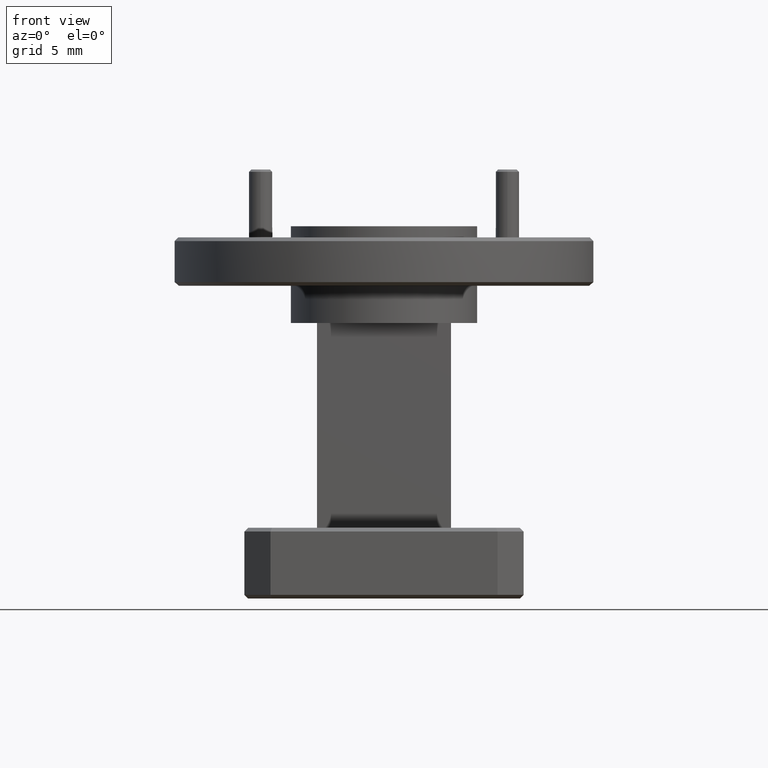
[diagram: clean part render]
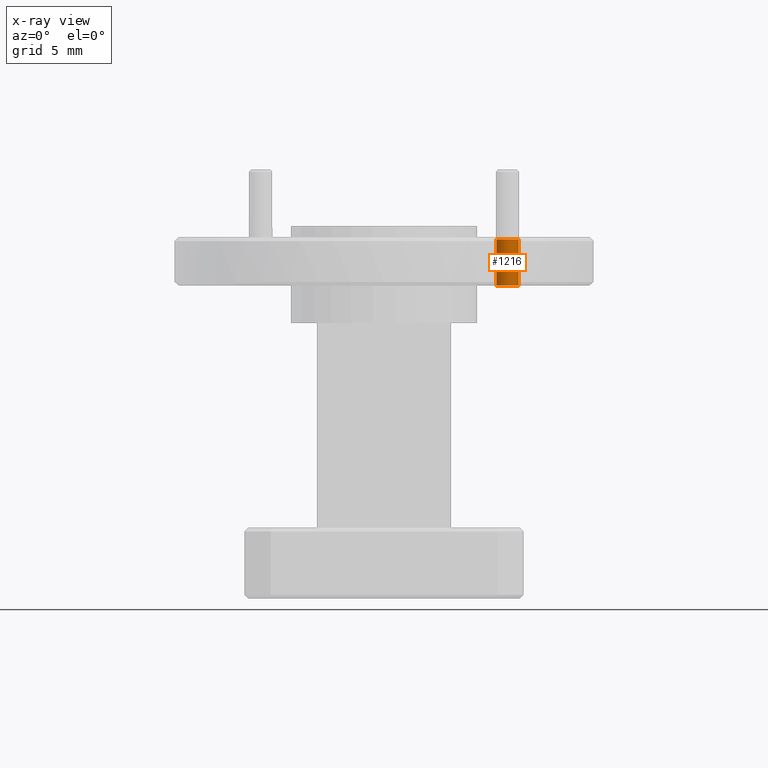
[diagram: x-ray — body ghosted, one internal face saturated and labeled with its STEP entity id]
A machine part, front view, then the same camera in x-ray: the body is ghosted and one INTERNAL B-rep face — a face not visible from any outside direction — is saturated and labeled: STEP entity #1216.
In plain terms, the highlighted cylindrical surface (edge-blend (fillet) strip) has radius 0.7556 mm, axis along (0, 0, 1).
Its self-contained STEP definition (entity closure, byte-faithful):
#61 = ORIENTED_EDGE ( 'NONE', *, *, #234, .F. ) ;
#151 = EDGE_CURVE ( 'NONE', #2220, #1768, #2068, .T. ) ;
#234 = EDGE_CURVE ( 'NONE', #2854, #1768, #1942, .T. ) ;
#287 = ORIENTED_EDGE ( 'NONE', *, *, #151, .T. ) ;
#300 = VERTEX_POINT ( 'NONE', #725 ) ;
#430 = AXIS2_PLACEMENT_3D ( 'NONE', #3182, #966, #463 ) ;
#463 = DIRECTION ( 'NONE',  ( 1.000000000000000000, 0.0000000000000000000, 0.0000000000000000000 ) ) ;
#636 = CARTESIAN_POINT ( 'NONE',  ( -2.874939537926160400, 0.3503381744168293500, 1.698770279067069600 ) ) ;
#725 = CARTESIAN_POINT ( 'NONE',  ( -2.845189537926160500, 0.3503381744168293500, 1.568770279067069900 ) ) ;
#966 = DIRECTION ( 'NONE',  ( -0.0000000000000000000, -0.0000000000000000000, -1.000000000000000000 ) ) ;
#985 = ORIENTED_EDGE ( 'NONE', *, *, #1401, .T. ) ;
#1143 = CARTESIAN_POINT ( 'NONE',  ( -2.845189537926160500, 0.3503381744168293500, 1.693520279067069100 ) ) ;
#1216 = ADVANCED_FACE ( 'NONE', ( #2870 ), #1741, .F. ) ;
#1401 = EDGE_CURVE ( 'NONE', #300, #2220, #2225, .T. ) ;
#1530 = CARTESIAN_POINT ( 'NONE',  ( -2.904689537926160400, 0.3503381744168293500, 1.693520279067069100 ) ) ;
#1554 = AXIS2_PLACEMENT_3D ( 'NONE', #636, #1880, #2627 ) ;
#1578 = ORIENTED_EDGE ( 'NONE', *, *, #1636, .F. ) ;
#1636 = EDGE_CURVE ( 'NONE', #300, #2854, #3125, .T. ) ;
#1741 = CYLINDRICAL_SURFACE ( 'NONE', #1554, 0.02974999999999986700 ) ;
#1768 = VERTEX_POINT ( 'NONE', #1530 ) ;
#1857 = AXIS2_PLACEMENT_3D ( 'NONE', #3212, #3187, #3202 ) ;
#1880 = DIRECTION ( 'NONE',  ( 0.0000000000000000000, 0.0000000000000000000, 1.000000000000000000 ) ) ;
#1918 = DIRECTION ( 'NONE',  ( 0.0000000000000000000, 0.0000000000000000000, 1.000000000000000000 ) ) ;
#1942 = CIRCLE ( 'NONE', #1857, 0.02974999999999986700 ) ;
#2068 = LINE ( 'NONE', #2379, #2789 ) ;
#2097 = CARTESIAN_POINT ( 'NONE',  ( -2.904689537926160400, 0.3503381744168293500, 1.568770279067069900 ) ) ;
#2220 = VERTEX_POINT ( 'NONE', #2097 ) ;
#2225 = CIRCLE ( 'NONE', #430, 0.02974999999999986700 ) ;
#2292 = VECTOR ( 'NONE', #1918, 39.37007874015748100 ) ;
#2379 = CARTESIAN_POINT ( 'NONE',  ( -2.904689537926160400, 0.3503381744168293500, 1.698770279067069600 ) ) ;
#2627 = DIRECTION ( 'NONE',  ( 1.000000000000000000, 0.0000000000000000000, 0.0000000000000000000 ) ) ;
#2660 = EDGE_LOOP ( 'NONE', ( #985, #287, #61, #1578 ) ) ;
#2688 = DIRECTION ( 'NONE',  ( 0.0000000000000000000, 0.0000000000000000000, 1.000000000000000000 ) ) ;
#2789 = VECTOR ( 'NONE', #2688, 39.37007874015748100 ) ;
#2854 = VERTEX_POINT ( 'NONE', #1143 ) ;
#2870 = FACE_OUTER_BOUND ( 'NONE', #2660, .T. ) ;
#3125 = LINE ( 'NONE', #3167, #2292 ) ;
#3167 = CARTESIAN_POINT ( 'NONE',  ( -2.845189537926160500, 0.3503381744168293500, 1.698770279067069600 ) ) ;
#3182 = CARTESIAN_POINT ( 'NONE',  ( -2.874939537926160400, 0.3503381744168293500, 1.568770279067069900 ) ) ;
#3187 = DIRECTION ( 'NONE',  ( -0.0000000000000000000, -0.0000000000000000000, -1.000000000000000000 ) ) ;
#3202 = DIRECTION ( 'NONE',  ( 1.000000000000000000, 0.0000000000000000000, 0.0000000000000000000 ) ) ;
#3212 = CARTESIAN_POINT ( 'NONE',  ( -2.874939537926160400, 0.3503381744168293500, 1.693520279067069100 ) ) ;